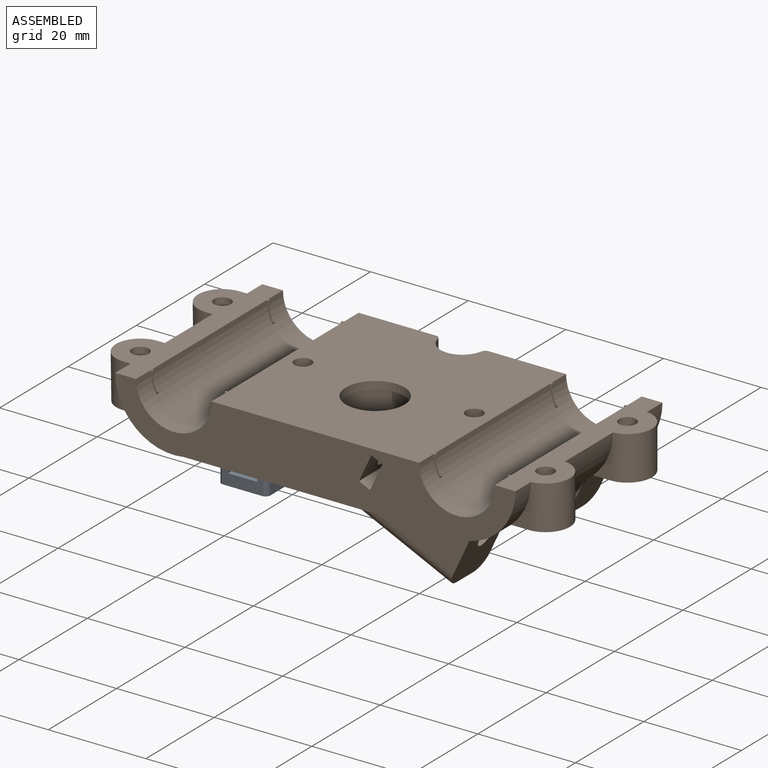
[diagram: assembled view]
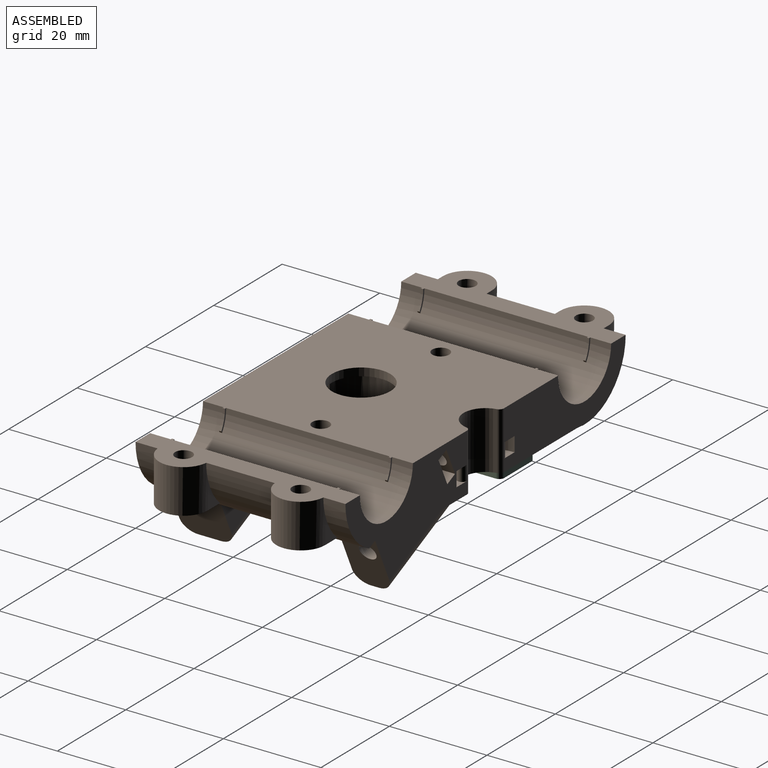
[diagram: assembled view, second angle]
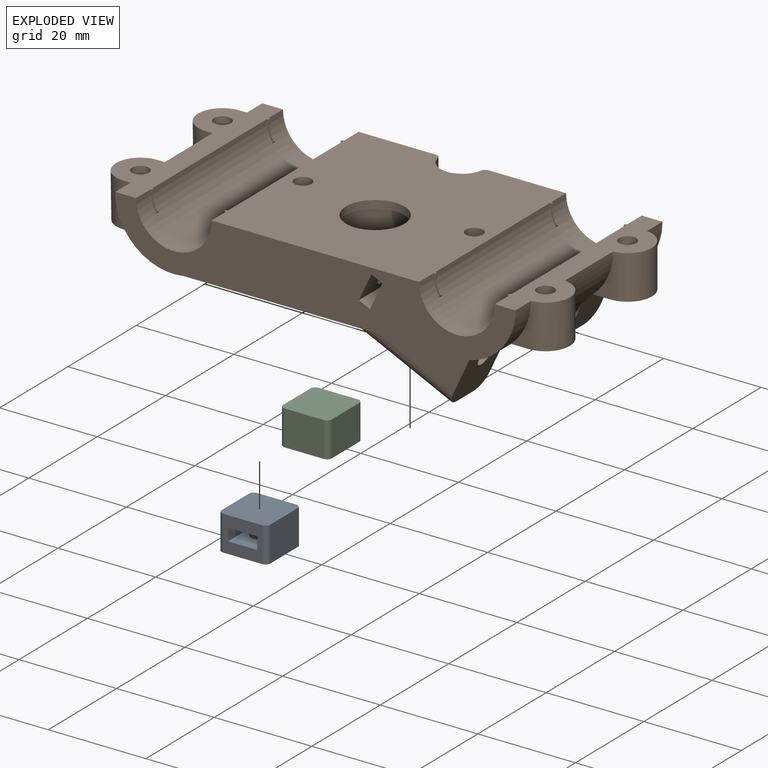
[diagram: exploded view]
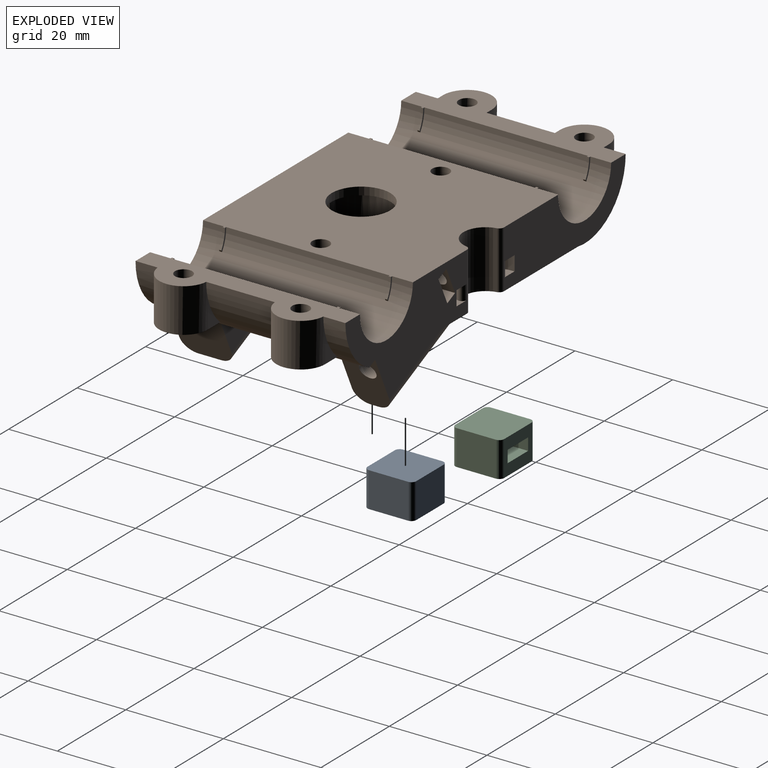
[diagram: exploded view, second angle]
ASSEMBLY  parts=3 mates=2
PART A: 18 faces, bbox 10x10x7.2 mm
  f0: plane 8x7.2mm, normal (-1,0,0), area 42.6mm2, adj f4,f5,f7,f8,f9,f10,f16,f17
  f1: plane 8x7.2mm, normal (0,-1,0), area 57.6mm2, adj f4,f5,f14,f17
  f2: plane 8x7.2mm, normal (1,0,0), area 57.6mm2, adj f4,f5,f14,f15
  f3: plane 8x7.2mm, normal (0,1,0), area 57.6mm2, adj f4,f5,f15,f16
  f4: plane 10x10mm, normal (0,0,1), area 89.5mm2, adj f0,f1,f2,f3,f6,f14,f15,f16
  f5: plane 10x10mm, normal (0,0,-1), area 99.1mm2, adj f0,f1,f2,f3,f14,f15,f16,f17
  f6: cylinder r=1.75mm len=3.5mm, axis (0,0,1), area 25.8mm2, adj f4,f7
  f7: plane 8x6mm, normal (0,0,-1), area 38.4mm2, adj f0,f6,f9,f10,f11
  f8: plane 8x6mm, normal (0,0,1), area 38.4mm2, adj f0,f9,f10,f11,f13
  f9: plane 8x2.5mm, normal (0,1,0), area 20mm2, adj f0,f7,f8,f11
  f10: plane 8x2.5mm, normal (0,-1,0), area 20mm2, adj f0,f7,f8,f11
  f11: plane 6x2.5mm, normal (-1,0,0), area 15mm2, adj f7,f8,f9,f10
  f12: plane 3.5x3.5mm, normal (0,0,1), area 9.6mm2, adj f13
  f13: cylinder r=1.75mm len=3.5mm, axis (0,0,1), area 12.6mm2, adj f8,f12
  f14: cylinder r=1mm len=7.2mm, axis (0,0,1), area 11.3mm2, adj f1,f2,f4,f5
  f15: cylinder r=1mm len=7.2mm, axis (0,0,-1), area 11.3mm2, adj f2,f3,f4,f5
  f16: cylinder r=1mm len=7.2mm, axis (0,0,1), area 11.3mm2, adj f0,f3,f4,f5
  f17: cylinder r=1mm len=7.2mm, axis (0,0,-1), area 11.3mm2, adj f0,f1,f4,f5
PART B: 188 faces, bbox 95.7x45.7x24.5 mm
  f0: plane 0.5x0.34mm, normal (-0.86,0,-0.5), area 0.2mm2, adj f9,f10,f12,f14
  f1: plane 0.5x0.34mm, normal (0.86,0,-0.5), area 0.2mm2, adj f6,f8,f9,f52
  f2: plane 0.5x0.34mm, normal (0.86,0,-0.5), area 0.2mm2, adj f9,f11,f13,f15
  f3: plane 0.5x0.34mm, normal (-0.86,0,-0.5), area 0.2mm2, adj f4,f5,f7,f9
  f4: plane 4.15x1.41mm, normal (0,-1,0), area 1.5mm2, adj f3,f5,f9,f50
  f5: cylinder r=7.4mm len=3.81mm, axis (0,-1,0), area 2mm2, adj f3,f4,f7,f50
  f6: cylinder r=7.4mm len=3.81mm, axis (0,-1,0), area 2mm2, adj f1,f8,f47,f52
  f7: plane 4.15x1.41mm, normal (0,1,0), area 1.5mm2, adj f3,f5,f9,f50
  f8: plane 4.15x1.41mm, normal (0,1,0), area 1.5mm2, adj f1,f6,f9,f47
  f9: cylinder r=7.75mm len=43mm, axis (0,-1,0), area 1038.2mm2, adj f0,f1,f2,f3,f4,f7,f8,f10
  f10: plane 4.15x1.41mm, normal (0,-1,0), area 1.5mm2, adj f0,f9,f14,f50
  f11: plane 4.15x1.41mm, normal (0,-1,0), area 1.5mm2, adj f2,f9,f15,f47
  f12: plane 4.15x1.41mm, normal (0,1,0), area 1.5mm2, adj f0,f9,f14,f50
  f13: plane 4.15x1.41mm, normal (0,1,0), area 1.5mm2, adj f2,f9,f15,f47
  f14: cylinder r=7.4mm len=3.81mm, axis (0,-1,0), area 2mm2, adj f0,f10,f12,f50
  f15: cylinder r=7.4mm len=3.81mm, axis (0,-1,0), area 2mm2, adj f2,f11,f13,f47
  f16: plane 0.5x0.34mm, normal (-0.86,0,-0.5), area 0.2mm2, adj f25,f27,f44,f49
  f17: plane 0.5x0.34mm, normal (0.86,0,-0.5), area 0.2mm2, adj f23,f24,f26,f49
  f18: plane 0.5x0.34mm, normal (0.86,0,-0.5), area 0.2mm2, adj f20,f21,f22,f49
  f19: plane 0.5x0.34mm, normal (-0.86,0,-0.5), area 0.2mm2, adj f43,f45,f48,f49
  f20: plane 4.15x1.41mm, normal (0,-1,0), area 1.5mm2, adj f18,f21,f49,f50
  f21: cylinder r=7.4mm len=3.81mm, axis (0,1,0), area 2mm2, adj f18,f20,f22,f50
  f22: plane 4.15x1.41mm, normal (0,1,0), area 1.5mm2, adj f18,f21,f49,f50
  f23: plane 4.15x1.41mm, normal (0,1,0), area 1.5mm2, adj f17,f26,f49,f50
  f24: plane 4.15x1.41mm, normal (0,-1,0), area 1.5mm2, adj f17,f26,f49,f50
  f25: plane 4.15x1.41mm, normal (0,-1,0), area 1.5mm2, adj f16,f27,f46,f49
  f26: cylinder r=7.4mm len=3.81mm, axis (0,1,0), area 2mm2, adj f17,f23,f24,f50
  f27: cylinder r=7.4mm len=3.81mm, axis (0,1,0), area 2mm2, adj f16,f25,f44,f46
  f28: plane 6x3.5mm, normal (0,-1,0), area 21mm2, adj f29,f31,f33,f34
  f29: plane 6x3.5mm, normal (1,0,0), area 21mm2, adj f28,f31,f32,f34
  f30: cylinder r=1.75mm len=8.33mm, axis (0,0,1), area 91.5mm2, adj f31,f50
  f31: plane 6x6mm, normal (0,0,-1), area 26.4mm2, adj f28,f29,f30,f32,f33
  f32: plane 6.01x4.07mm, normal (0,1,0), area 21.2mm2, adj f29,f31,f33,f34,f182
  f33: plane 6.25x4.32mm, normal (-1,0,0), area 22.1mm2, adj f28,f31,f32,f34,f182
  f34: plane 46.15x45.71mm, normal (0,0,-1), area 794.8mm2, adj f28,f29,f32,f33,f39,f40,f42,f51
  f35: plane 6.01x4.18mm, normal (0,1,0), area 21.2mm2, adj f36,f38,f39,f41,f42,f161
  f36: plane 6x3.5mm, normal (-1,0,0), area 21mm2, adj f35,f38,f40,f42
  f37: cylinder r=1.75mm len=8.33mm, axis (0,0,1), area 91.5mm2, adj f38,f50
  f38: plane 6x6mm, normal (0,0,-1), area 26.4mm2, adj f35,f36,f37,f39,f40
  f39: plane 6.31x4.47mm, normal (1,0,0), area 22.4mm2, adj f34,f35,f38,f40,f161
  f40: plane 6x3.5mm, normal (0,-1,0), area 21mm2, adj f34,f36,f38,f39,f42
  f41: plane 7.83x2.91mm, normal (0,0,-1), area 13.7mm2, adj f35,f42,f89,f161
  f42: plane 24.7x10.47mm, normal (0,0,-1), area 234.5mm2, adj f34,f35,f36,f40,f41,f82,f89,f107
  f43: cylinder r=7.4mm len=3.81mm, axis (0,1,0), area 2mm2, adj f19,f45,f46,f48
  f44: plane 4.15x1.41mm, normal (0,1,0), area 1.5mm2, adj f16,f27,f46,f49
  f45: plane 4.15x1.41mm, normal (0,1,0), area 1.5mm2, adj f19,f43,f46,f49
  f46: plane 43x9.1mm, normal (0,0,1), area 232.4mm2, adj f25,f27,f43,f44,f45,f48,f49,f51
  f47: plane 43.1x11.2mm, normal (0,0,1), area 272.3mm2, adj f6,f8,f9,f11,f13,f15,f52,f53
  f48: plane 4.15x1.41mm, normal (0,-1,0), area 1.5mm2, adj f19,f43,f46,f49
  f49: cylinder r=7.75mm len=43mm, axis (0,1,0), area 1038.2mm2, adj f16,f17,f18,f19,f20,f22,f23,f24
  f50: plane 43.2x43mm, normal (0,0,1), area 1663.8mm2, adj f4,f5,f7,f9,f10,f12,f14,f20
  f51: plane 35.59x18.96mm, normal (0,1,0), area 338mm2, adj f34,f46,f49,f50,f77,f82,f106,f132
  f52: plane 4.15x1.41mm, normal (0,-1,0), area 1.5mm2, adj f1,f6,f9,f47
  f53: plane 35.59x12mm, normal (0,1,0), area 288.7mm2, adj f9,f34,f47,f50,f108,f134,f135,f136
  f54: plane 82x18.96mm, normal (0,-1,0), area 774.9mm2, adj f9,f34,f46,f47,f49,f50,f81,f82
  f55: plane 1.9x1.15mm, normal (-1,0,0), area 2.2mm2, adj f34,f56,f65,f71
  f56: plane 9x1.15mm, normal (0,1,0), area 10.3mm2, adj f34,f55,f57,f71
  f57: plane 9x1.15mm, normal (-1,0,0), area 10.3mm2, adj f34,f56,f58,f71
  f58: plane 1.9x1.15mm, normal (0,1,0), area 2.2mm2, adj f34,f57,f59,f71
  f59: plane 1.6x1.15mm, normal (-1,0,0), area 1.8mm2, adj f34,f58,f60,f71
  f60: plane 3.4x3.4mm, normal (-0.71,-0.71,0), area 5.5mm2, adj f34,f59,f61,f71
  f61: plane 3.4x3.4mm, normal (0.71,-0.71,0), area 5.5mm2, adj f34,f60,f62,f71
  f62: plane 1.6x1.15mm, normal (1,0,0), area 1.8mm2, adj f34,f61,f69,f71
  f63: plane 6x1.15mm, normal (0,-1,0), area 6.9mm2, adj f34,f64,f70,f71
  f64: plane 1.9x1.15mm, normal (-1,0,0), area 2.2mm2, adj f34,f63,f68,f71
  f65: plane 1.6x1.15mm, normal (0,1,0), area 1.8mm2, adj f34,f55,f66,f71
  f66: plane 3.4x3.4mm, normal (0.71,0.71,0), area 5.5mm2, adj f34,f65,f67,f71
  f67: plane 3.4x3.4mm, normal (0.71,-0.71,0), area 5.5mm2, adj f34,f66,f68,f71
  f68: plane 1.6x1.15mm, normal (0,-1,0), area 1.8mm2, adj f34,f64,f67,f71
  f69: plane 1.9x1.15mm, normal (0,1,0), area 2.2mm2, adj f34,f62,f70,f71
  f70: plane 6x1.15mm, normal (1,0,0), area 6.9mm2, adj f34,f63,f69,f71
  f71: plane 15.9x15.9mm, normal (0,0,-1), area 89.9mm2, adj f55,f56,f57,f58,f59,f60,f61,f62
  f72: cylinder r=1.75mm len=19.74mm, axis (-0.91,0,0.42), area 221.6mm2, adj f81,f153
  f73: cylinder r=1.75mm len=19.74mm, axis (-0.91,0,0.42), area 221.6mm2, adj f106,f149
  f74: cylinder r=4.95mm len=7.82mm, axis (-0.91,0,0.42), area 17.1mm2, adj f75,f81,f82
  f75: plane 1.29x0.71mm, normal (-0.3,-0.71,-0.64), area 0.6mm2, adj f74,f79,f81,f82
  f76: cylinder r=2.95mm len=0.35mm, axis (0.91,0,-0.42), area 0mm2, adj f80,f82,f106
  f77: cylinder r=4.95mm len=6.06mm, axis (-0.91,0,0.42), area 14.3mm2, adj f51,f78,f82,f106
  f78: cylinder r=4mm len=4.46mm, axis (-0.91,0,0.42), area 2mm2, adj f77,f80,f82,f106
  f79: cylinder r=2.95mm len=1.11mm, axis (0.91,0,-0.42), area 0.6mm2, adj f75,f81,f82
  f80: cylinder r=22.3mm len=19.51mm, axis (-0.91,0,0.42), area 37mm2, adj f76,f78,f82,f106
  f81: plane 12.26x10.67mm, normal (0.91,0,-0.42), area 119.5mm2, adj f54,f72,f74,f75,f79,f82,f89,f145
  f82: cylinder r=12mm len=43mm, axis (0,1,0), area 525.6mm2, adj f42,f46,f51,f54,f74,f75,f76,f77
  f83: plane 6.56x4mm, normal (0,1,0), area 24.1mm2, adj f82,f96,f98,f99,f105
  f84: plane 5.57x3.56mm, normal (0,1,0), area 7.9mm2, adj f82,f85,f87
  f85: cylinder r=5mm len=9mm, axis (0,0,1), area 69.8mm2, adj f46,f82,f84,f87,f94
  f86: plane 6.56x4mm, normal (0,-1,0), area 24.1mm2, adj f82,f96,f98,f99,f105
  f87: plane 10x8.56mm, normal (0,0,-1), area 35.5mm2, adj f82,f84,f85,f91,f94,f95,f100,f101
  f88: plane 5.57x3.56mm, normal (0,1,0), area 7.9mm2, adj f82,f90,f105
  f89: plane 18.22x7.24mm, normal (0,1,0), area 66mm2, adj f41,f42,f81,f82,f145,f161
  f90: cylinder r=5mm len=9mm, axis (0,0,1), area 69.8mm2, adj f46,f82,f88,f92,f105
  f91: plane 6.56x4mm, normal (0,-1,0), area 24.1mm2, adj f82,f87,f101,f103,f104
  f92: cylinder r=5mm len=9mm, axis (0,0,-1), area 69.8mm2, adj f46,f82,f90,f93,f105
  f93: plane 5.57x3.56mm, normal (0,-1,0), area 7.9mm2, adj f82,f92,f105
  f94: cylinder r=5mm len=9mm, axis (0,0,-1), area 69.8mm2, adj f46,f82,f85,f87,f95
  f95: plane 5.57x3.56mm, normal (0,-1,0), area 7.9mm2, adj f82,f87,f94
  f96: plane 6x4mm, normal (-1,0,0), area 24mm2, adj f83,f86,f98,f105
  f97: cylinder r=1.75mm len=5mm, axis (0,0,1), area 55mm2, adj f46,f98
  f98: plane 6x6mm, normal (0,0,-1), area 26.4mm2, adj f83,f86,f96,f97,f99
  f99: plane 6x3.47mm, normal (1,0,0), area 20.8mm2, adj f82,f83,f86,f98
  f100: plane 6.56x4mm, normal (0,1,0), area 24.1mm2, adj f82,f87,f101,f103,f104
  f101: plane 6x4mm, normal (-1,0,0), area 24mm2, adj f87,f91,f100,f103
  f102: cylinder r=1.75mm len=5mm, axis (0,0,1), area 55mm2, adj f46,f103
  f103: plane 6x6mm, normal (0,0,-1), area 26.4mm2, adj f91,f100,f101,f102,f104
  f104: plane 6x3.47mm, normal (1,0,0), area 20.8mm2, adj f82,f91,f100,f103
  f105: plane 10x8.56mm, normal (0,0,-1), area 35.5mm2, adj f82,f83,f86,f88,f90,f92,f93,f96
  f106: plane 30.38x12.26mm, normal (0.91,0,-0.42), area 120.3mm2, adj f51,f73,f76,f77,f78,f80,f82,f107
  f107: plane 18.69x7.24mm, normal (0,-1,0), area 66.1mm2, adj f34,f42,f82,f106,f144
  f108: cylinder r=12mm len=43mm, axis (0,1,0), area 696.5mm2, adj f34,f47,f53,f54,f109,f110,f111,f114
  f109: plane 9.04x5.51mm, normal (0,1,0), area 24.1mm2, adj f47,f108,f110,f116
  f110: plane 10.38x10mm, normal (0.01,0,-1), area 57.1mm2, adj f108,f109,f111,f112,f116,f119,f120,f123
  f111: plane 9.04x5.51mm, normal (0,-1,0), area 24.1mm2, adj f47,f108,f110,f112
  f112: cylinder r=5mm len=9.19mm, axis (0.01,0,-1), area 71.3mm2, adj f47,f110,f111,f116
  f113: cylinder r=5mm len=9.19mm, axis (0.01,0,-1), area 71.3mm2, adj f47,f114,f115,f117
  f114: plane 9.04x5.51mm, normal (0,-1,0), area 24.1mm2, adj f47,f108,f113,f115
  f115: plane 10.38x10mm, normal (0.01,0,-1), area 57.1mm2, adj f108,f113,f114,f117,f118,f125,f126,f129
  f116: cylinder r=5mm len=9.19mm, axis (-0.01,0,1), area 71.3mm2, adj f47,f109,f110,f112
  f117: cylinder r=5mm len=9.19mm, axis (-0.01,0,1), area 71.3mm2, adj f47,f113,f115,f118
  f118: plane 9.04x5.51mm, normal (0,1,0), area 24.1mm2, adj f47,f108,f115,f117
  f119: plane 6.05x3.59mm, normal (0,1,0), area 21mm2, adj f110,f120,f122,f124
  f120: plane 6x3.5mm, normal (-1,0,-0.01), area 21mm2, adj f110,f119,f122,f123
  f121: cylinder r=1.75mm len=5.62mm, axis (0.01,0,-1), area 61.2mm2, adj f47,f122
  f122: plane 6x6mm, normal (0.01,0,-1), area 26.4mm2, adj f119,f120,f121,f123,f124
  f123: plane 6.05x3.59mm, normal (0,-1,0), area 21mm2, adj f110,f120,f122,f124
  f124: plane 6x3.5mm, normal (1,0,0.01), area 21mm2, adj f110,f119,f122,f123
  f125: plane 6.05x3.59mm, normal (0,1,0), area 21mm2, adj f115,f126,f128,f130
  f126: plane 6x3.5mm, normal (-1,0,-0.01), area 21mm2, adj f115,f125,f128,f129
  f127: cylinder r=1.75mm len=5.62mm, axis (0.01,0,-1), area 61.2mm2, adj f47,f128
  f128: plane 6x6mm, normal (0.01,0,-1), area 26.4mm2, adj f125,f126,f127,f129,f130
  f129: plane 6.05x3.59mm, normal (0,-1,0), area 21mm2, adj f115,f126,f128,f130
  f130: plane 6x3.5mm, normal (1,0,0.01), area 21mm2, adj f115,f125,f128,f129
  f131: cylinder r=4.5mm len=11.83mm, axis (0,0,1), area 147.7mm2, adj f34,f50,f132,f134
  f132: cylinder r=1mm len=11.83mm, axis (0,0,-1), area 21.7mm2, adj f34,f50,f51,f131,f133,f135,f137
  f133: cylinder r=6.5mm len=12.78mm, axis (0,0,1), area 54.1mm2, adj f132,f134,f135,f137
  f134: cylinder r=1mm len=11.83mm, axis (0,0,-1), area 21.7mm2, adj f34,f50,f53,f131,f133,f135,f137
  f135: plane 17x8.5mm, normal (0,0,1), area 47.7mm2, adj f51,f53,f132,f133,f134,f136
  f136: cylinder r=8.5mm len=17mm, axis (0,0,-1), area 80.1mm2, adj f51,f53,f135,f137
  f137: plane 17x8.5mm, normal (0,0,-1), area 47.7mm2, adj f51,f53,f132,f133,f134,f136
  f138: cylinder r=1.75mm len=5.1mm, axis (0.91,0,-0.42), area 44mm2, adj f139,f150
  f139: plane 3.5x3.17mm, normal (0.91,0,-0.42), area 9.6mm2, adj f138
  f140: cylinder r=1.75mm len=5.1mm, axis (0.91,0,-0.42), area 44mm2, adj f141,f155
  f141: plane 3.5x3.17mm, normal (0.91,0,-0.42), area 9.6mm2, adj f140
  f142: cylinder r=3mm len=22.41mm, axis (0.91,0,-0.42), area 94.8mm2, adj f34,f51,f106,f143
  f143: plane 21.14x9.86mm, normal (-0.42,0,-0.91), area 38.1mm2, adj f34,f106,f142,f144
  f144: cylinder r=3mm len=22.41mm, axis (0.91,0,-0.42), area 94.8mm2, adj f34,f106,f107,f143
  f145: cylinder r=3mm len=18.86mm, axis (0.91,0,-0.42), area 84.3mm2, adj f81,f89,f147,f161
  f146: cylinder r=3mm len=22.41mm, axis (0.91,0,-0.42), area 94.8mm2, adj f34,f54,f81,f147
  f147: plane 21.4x10.12mm, normal (-0.42,0,-0.91), area 99.8mm2, adj f34,f81,f145,f146,f161
  f148: plane 5.63x2.27mm, normal (-0.42,0,-0.91), area 14.1mm2, adj f51,f149,f150,f151
  f149: plane 5.63x5.44mm, normal (-0.91,0,0.42), area 24.2mm2, adj f51,f73,f148,f151,f152
  f150: plane 5.63x5.44mm, normal (0.91,0,-0.42), area 24.2mm2, adj f51,f138,f148,f151,f152
  f151: plane 6.49x4.8mm, normal (0,1,0), area 15mm2, adj f148,f149,f150,f152
  f152: plane 5.63x2.27mm, normal (0.42,0,0.91), area 14.1mm2, adj f51,f149,f150,f151
  f153: plane 8.67x5.44mm, normal (-0.91,0,0.42), area 42.4mm2, adj f54,f72,f154,f156,f157
  f154: plane 8.67x2.27mm, normal (0.42,0,0.91), area 21.7mm2, adj f54,f153,f155,f157
  f155: plane 8.67x5.44mm, normal (0.91,0,-0.42), area 42.4mm2, adj f54,f140,f154,f156,f157
  f156: plane 8.67x2.27mm, normal (-0.42,0,-0.91), area 21.7mm2, adj f54,f153,f155,f157
  f157: plane 6.49x4.8mm, normal (0,-1,0), area 15mm2, adj f153,f154,f155,f156
  f158: plane 0.05x0.04mm, normal (-0.42,0,-0.91), area 0mm2, adj f159,f160,f173
  f159: plane 0.12x0.05mm, normal (-0.91,0,0.42), area 0mm2, adj f158,f160,f173
  f160: plane 0.14x0.05mm, normal (0,1,0), area 0mm2, adj f158,f159,f173
  f161: cone r=13.6mm half-angle=45deg, axis (0,0,1), area 135.2mm2, adj f34,f35,f39,f41,f89,f145,f147,f166
  f162: cylinder r=2.2mm len=8.71mm, axis (0,-0.5,-0.87), area 80mm2, adj f163,f173,f186
  f163: plane 20.97x18.16mm, normal (0,0,-1), area 109.3mm2, adj f162,f169,f173,f184
  f164: plane 8.24x6.92mm, normal (-1,0,0), area 22mm2, adj f173,f176,f185,f187
  f165: plane 8.24x6.92mm, normal (-1,0,0), area 22mm2, adj f168,f170,f173,f186
  f166: plane 4.38x2.6mm, normal (1,0,0), area 2.1mm2, adj f34,f161,f178
  f167: plane 4.38x2.6mm, normal (1,0,0), area 2.1mm2, adj f34,f161,f175
  f168: plane 7.5x2.17mm, normal (0,0.87,-0.5), area 18.8mm2, adj f165,f170,f180,f186
  f169: cylinder r=2.2mm len=8.71mm, axis (0,0.5,-0.87), area 80mm2, adj f163,f173,f185
  f170: plane 8.24x7.5mm, normal (0,0.5,0.87), area 50.9mm2, adj f165,f168,f171,f173,f180
  f171: cylinder r=2.2mm len=5.36mm, axis (0,-0.5,-0.87), area 42.9mm2, adj f170,f175
  f172: cone r=8.38mm half-angle=45deg, axis (0,0,-1), area 18.6mm2, adj f173,f174
  f173: cylinder r=8.25mm len=16.5mm, axis (0,0,1), area 579.9mm2, adj f158,f159,f160,f162,f163,f164,f165,f169
  f174: plane 24.4x22.72mm, normal (0,0,-1), area 230.6mm2, adj f161,f172,f175,f178,f182
  f175: plane 8.97x5.26mm, normal (0,-0.5,-0.87), area 25.3mm2, adj f34,f161,f167,f171,f174,f182,f183
  f176: plane 8.24x7.5mm, normal (0,-0.5,0.87), area 50.9mm2, adj f164,f173,f177,f179,f187
  f177: cylinder r=2.2mm len=5.36mm, axis (0,0.5,-0.87), area 42.9mm2, adj f176,f178
  f178: plane 8.97x5.26mm, normal (0,0.5,-0.87), area 25.3mm2, adj f34,f161,f166,f174,f177,f181,f182
  f179: plane 8.24x6.92mm, normal (1,0,0), area 22mm2, adj f173,f176,f185,f187
  f180: plane 8.24x6.92mm, normal (1,0,0), area 22mm2, adj f168,f170,f173,f186
  f181: plane 4.38x2.6mm, normal (-1,0,0), area 2.1mm2, adj f34,f178,f182
  f182: cone r=13.6mm half-angle=45deg, axis (0,0,1), area 152.3mm2, adj f32,f33,f34,f174,f175,f178,f181,f183
  f183: plane 4.38x2.6mm, normal (-1,0,0), area 2.1mm2, adj f34,f175,f182
  f184: cylinder r=6mm len=12mm, axis (0,0,1), area 61.3mm2, adj f50,f163
  f185: plane 7.5x6.99mm, normal (0,0.5,-0.87), area 40.1mm2, adj f164,f169,f173,f179,f187
  f186: plane 7.5x6.99mm, normal (0,-0.5,-0.87), area 40.1mm2, adj f162,f165,f168,f173,f180
  f187: plane 7.5x2.17mm, normal (0,-0.87,-0.5), area 18.8mm2, adj f164,f176,f179,f185
PART C: same geometry as A
PLACE A rot(axis=(-0.71,-0.71,0),180deg) t=(-513.21,28.35,364.6)mm
PLACE B t=(-381.62,-440.5,-313.78)mm fixed
PLACE C rot(axis=(0.71,-0.71,0),180deg) t=(-425.09,-60.51,364.6)mm
MATE fastened C.f6 <-> B.f34  axis (0,0,1) through (-469.15,-7.08,364.6)mm
MATE fastened A.f6 <-> B.f34  axis (0,0,1) through (-469.15,-25.08,364.6)mm
